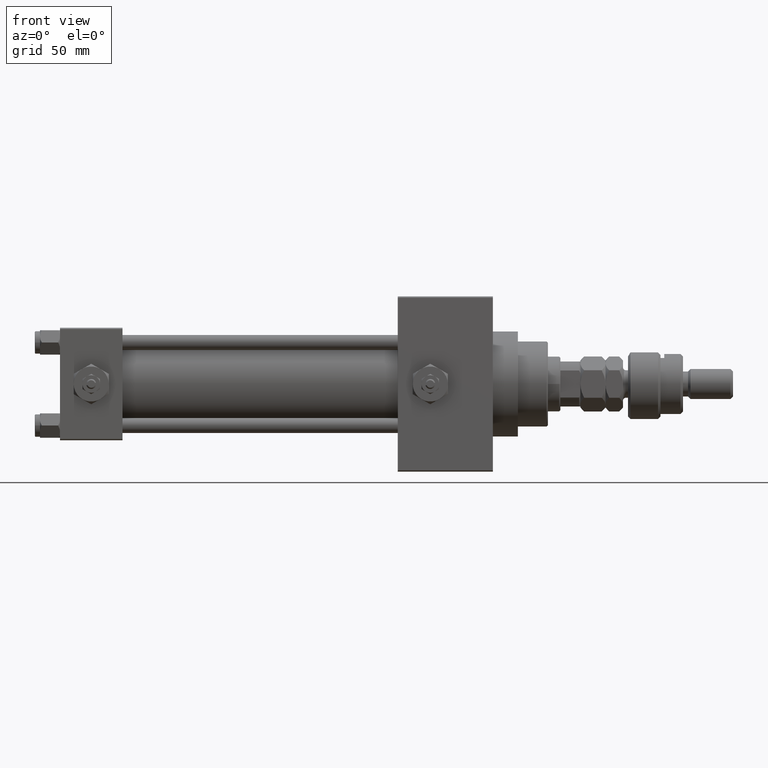
[diagram: clean part render]
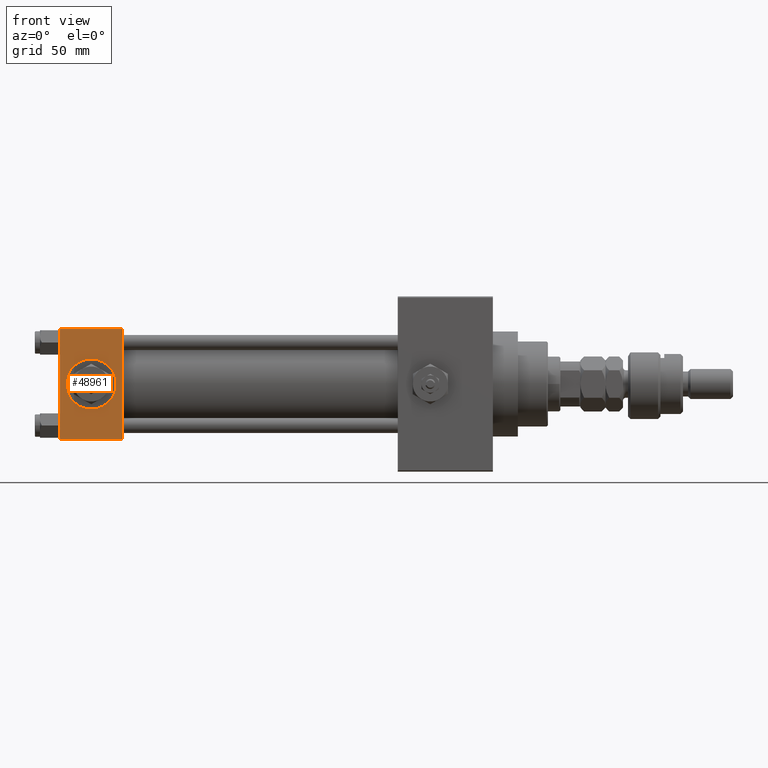
[diagram: same view with one face highlighted and labeled with its STEP entity id]
A machine part, front view. The second image highlights one B-rep face of the part: STEP entity #48961.
In plain terms, the highlighted planar face has unit normal (0, 1, 0).
Its self-contained STEP definition (entity closure, byte-faithful):
#239 = ORIENTED_EDGE ( 'NONE', *, *, #24671, .F. ) ;
#1330 = CARTESIAN_POINT ( 'NONE',  ( 25.00000000000000000, -22.50000000000000000, -21.99999999999998579 ) ) ;
#1670 = CARTESIAN_POINT ( 'NONE',  ( 25.00000000000000000, -22.50000000000000000, 22.50000000000000000 ) ) ;
#1695 = PLANE ( 'NONE',  #32972 ) ;
#1951 = FACE_BOUND ( 'NONE', #43771, .T. ) ;
#2662 = LINE ( 'NONE', #39189, #30213 ) ;
#6120 = VECTOR ( 'NONE', #9022, 1000.000000000000000 ) ;
#8406 = CIRCLE ( 'NONE', #41108, 9.999999999999996447 ) ;
#9022 = DIRECTION ( 'NONE',  ( 0.000000000000000000, 0.000000000000000000, -1.000000000000000000 ) ) ;
#9288 = LINE ( 'NONE', #1670, #6120 ) ;
#9459 = DIRECTION ( 'NONE',  ( 1.000000000000000000, 0.000000000000000000, 0.000000000000000000 ) ) ;
#10116 = LINE ( 'NONE', #26189, #31663 ) ;
#11791 = CARTESIAN_POINT ( 'NONE',  ( 12.50000000000000000, -22.50000000000000000, 0.000000000000000000 ) ) ;
#14052 = DIRECTION ( 'NONE',  ( 0.000000000000000000, -1.000000000000000000, -8.673617379884036705E-17 ) ) ;
#15259 = CARTESIAN_POINT ( 'NONE',  ( 12.50000000000000000, -22.50000000000000000, -9.999999999999996447 ) ) ;
#16013 = VERTEX_POINT ( 'NONE', #17282 ) ;
#17115 = ORIENTED_EDGE ( 'NONE', *, *, #22035, .F. ) ;
#17282 = CARTESIAN_POINT ( 'NONE',  ( 0.000000000000000000, -22.50000000000000000, 22.00000000000000000 ) ) ;
#17599 = ORIENTED_EDGE ( 'NONE', *, *, #45920, .F. ) ;
#17864 = AXIS2_PLACEMENT_3D ( 'NONE', #36488, #14052, #33087 ) ;
#19381 = EDGE_LOOP ( 'NONE', ( #49303, #41780, #239, #36009 ) ) ;
#21750 = EDGE_CURVE ( 'NONE', #36852, #46385, #24746, .T. ) ;
#22035 = EDGE_CURVE ( 'NONE', #26209, #30611, #30446, .T. ) ;
#22932 = CARTESIAN_POINT ( 'NONE',  ( 25.00000000000000000, -22.50000000000000000, 22.00000000000000000 ) ) ;
#23752 = VECTOR ( 'NONE', #9459, 1000.000000000000000 ) ;
#24671 = EDGE_CURVE ( 'NONE', #43616, #46385, #9288, .T. ) ;
#24676 = DIRECTION ( 'NONE',  ( 0.000000000000000000, 0.000000000000000000, -1.000000000000000000 ) ) ;
#24746 = LINE ( 'NONE', #1330, #23752 ) ;
#25631 = DIRECTION ( 'NONE',  ( -0.000000000000000000, 1.000000000000000000, 0.000000000000000000 ) ) ;
#26189 = CARTESIAN_POINT ( 'NONE',  ( 0.000000000000000000, -22.50000000000000000, 22.50000000000000000 ) ) ;
#26209 = VERTEX_POINT ( 'NONE', #15259 ) ;
#26415 = CARTESIAN_POINT ( 'NONE',  ( 25.00000000000000000, -22.50000000000000000, -21.99999999999997158 ) ) ;
#27854 = DIRECTION ( 'NONE',  ( 0.000000000000000000, -1.000000000000000000, -8.673617379884036705E-17 ) ) ;
#30213 = VECTOR ( 'NONE', #35271, 1000.000000000000000 ) ;
#30446 = CIRCLE ( 'NONE', #17864, 9.999999999999996447 ) ;
#30611 = VERTEX_POINT ( 'NONE', #50343 ) ;
#31663 = VECTOR ( 'NONE', #41151, 1000.000000000000000 ) ;
#32972 = AXIS2_PLACEMENT_3D ( 'NONE', #37953, #25631, #46346 ) ;
#33087 = DIRECTION ( 'NONE',  ( 0.000000000000000000, 0.000000000000000000, -1.000000000000000000 ) ) ;
#34275 = FACE_OUTER_BOUND ( 'NONE', #19381, .T. ) ;
#35271 = DIRECTION ( 'NONE',  ( -1.000000000000000000, 0.000000000000000000, 0.000000000000000000 ) ) ;
#36009 = ORIENTED_EDGE ( 'NONE', *, *, #45529, .T. ) ;
#36488 = CARTESIAN_POINT ( 'NONE',  ( 12.50000000000000000, -22.50000000000000000, 0.000000000000000000 ) ) ;
#36660 = CARTESIAN_POINT ( 'NONE',  ( 0.000000000000000000, -22.50000000000000000, -21.99999999999997158 ) ) ;
#36852 = VERTEX_POINT ( 'NONE', #36660 ) ;
#37953 = CARTESIAN_POINT ( 'NONE',  ( 25.00000000000000000, -22.50000000000000000, 22.50000000000000000 ) ) ;
#39189 = CARTESIAN_POINT ( 'NONE',  ( 25.00000000000000000, -22.50000000000000000, 22.00000000000000000 ) ) ;
#41108 = AXIS2_PLACEMENT_3D ( 'NONE', #11791, #27854, #24676 ) ;
#41151 = DIRECTION ( 'NONE',  ( 0.000000000000000000, 0.000000000000000000, -1.000000000000000000 ) ) ;
#41780 = ORIENTED_EDGE ( 'NONE', *, *, #21750, .T. ) ;
#43616 = VERTEX_POINT ( 'NONE', #22932 ) ;
#43771 = EDGE_LOOP ( 'NONE', ( #17115, #17599 ) ) ;
#45529 = EDGE_CURVE ( 'NONE', #43616, #16013, #2662, .T. ) ;
#45920 = EDGE_CURVE ( 'NONE', #30611, #26209, #8406, .T. ) ;
#46346 = DIRECTION ( 'NONE',  ( 0.000000000000000000, -0.000000000000000000, 1.000000000000000000 ) ) ;
#46385 = VERTEX_POINT ( 'NONE', #26415 ) ;
#48961 = ADVANCED_FACE ( 'NONE', ( #1951, #34275 ), #1695, .F. ) ;
#49303 = ORIENTED_EDGE ( 'NONE', *, *, #50203, .T. ) ;
#50203 = EDGE_CURVE ( 'NONE', #16013, #36852, #10116, .T. ) ;
#50343 = CARTESIAN_POINT ( 'NONE',  ( 12.50000000000000178, -22.50000000000000000, 9.999999999999996447 ) ) ;